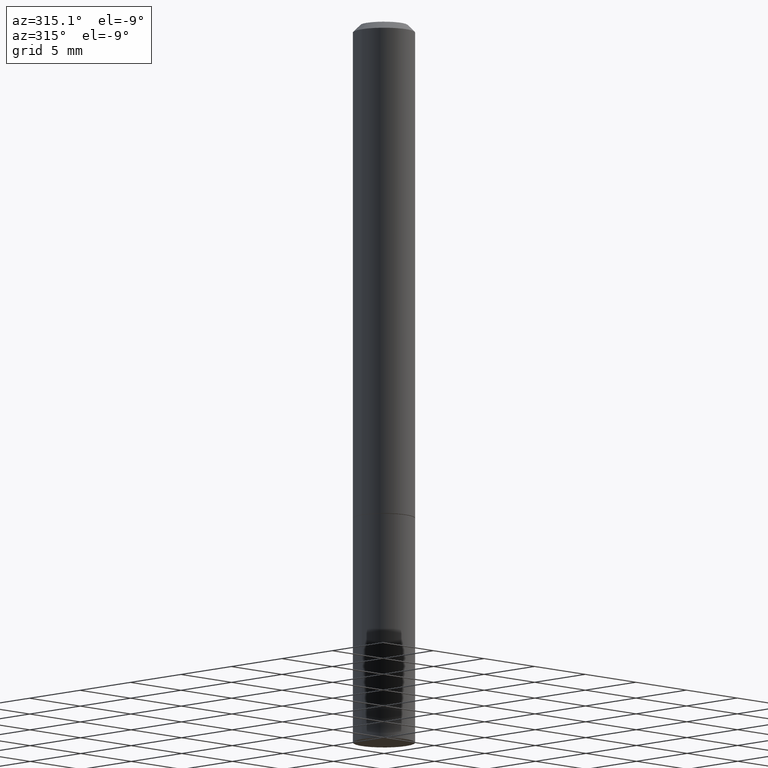
[diagram: clean part render]
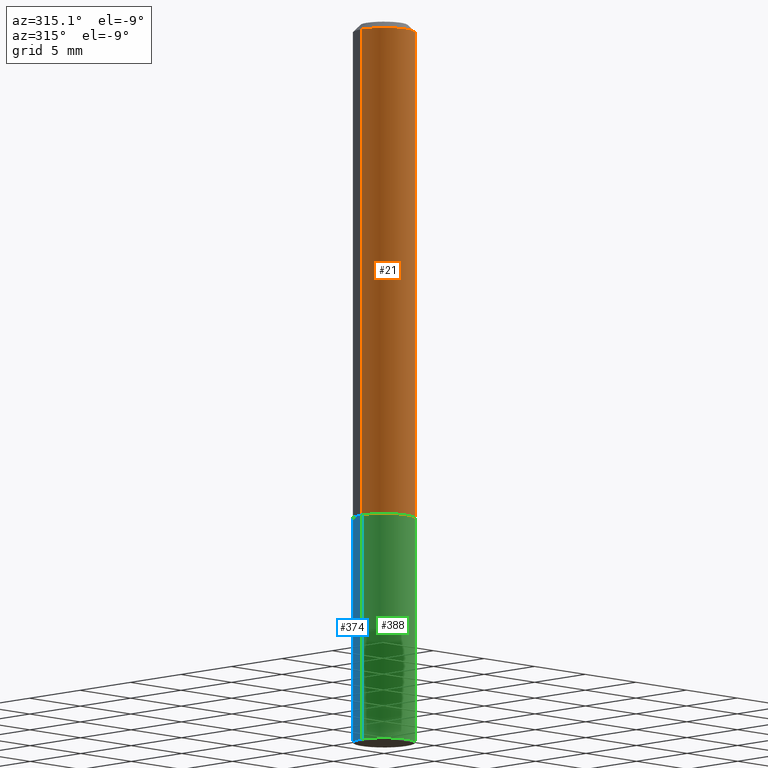
[diagram: same view with three faces highlighted in distinct colors, each labeled with its STEP entity id]
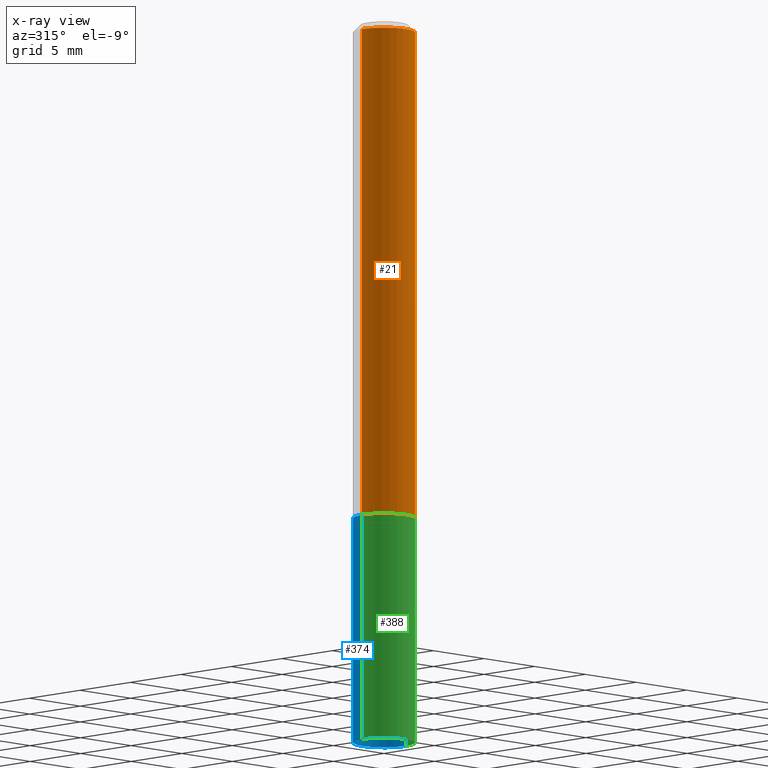
[diagram: x-ray of the same camera — body ghosted, the three highlighted faces saturated]
A machine part, auxiliary view with three faces highlighted in distinct colors.
The next image is the same camera in x-ray (body ghosted, the three faces saturated) — at least one of them is partly hidden behind the body in this view.
Their STEP definitions:

[orange] entity #21 — the highlighted cylindrical surface (edge-blend (fillet) strip) has radius 2.1831 mm, axis along (-0, 0, 1).
#1 = DIRECTION ( 'NONE',  ( -2.445468806185136877E-29, 3.491481338843145188E-15, 1.000000000000000000 ) ) ;
#13 = DIRECTION ( 'NONE',  ( 1.000000000000000000, -6.982962677686267499E-15, 0.000000000000000000 ) ) ;
#21 = ADVANCED_FACE ( 'NONE', ( #295 ), #330, .T. ) ;
#25 = ORIENTED_EDGE ( 'NONE', *, *, #190, .T. ) ;
#37 = DIRECTION ( 'NONE',  ( 1.000000000000000000, -6.982962677686267499E-15, 4.876176775795936353E-29 ) ) ;
#46 = AXIS2_PLACEMENT_3D ( 'NONE', #368, #68, #13 ) ;
#52 = VERTEX_POINT ( 'NONE', #267 ) ;
#60 = ORIENTED_EDGE ( 'NONE', *, *, #125, .T. ) ;
#68 = DIRECTION ( 'NONE',  ( -2.445468806185136597E-29, 3.491481338843145583E-15, 1.000000000000000000 ) ) ;
#70 = VECTOR ( 'NONE', #1, 39.37007874015748143 ) ;
#72 = VERTEX_POINT ( 'NONE', #240 ) ;
#85 = DIRECTION ( 'NONE',  ( 1.000000000000000000, -6.982962677686261977E-15, 0.000000000000000000 ) ) ;
#108 = CARTESIAN_POINT ( 'NONE',  ( 0.000000000000000000, 0.000000000000000000, 0.000000000000000000 ) ) ;
#111 = DIRECTION ( 'NONE',  ( -2.445468806185136597E-29, 3.491481338843145583E-15, 1.000000000000000000 ) ) ;
#113 = CARTESIAN_POINT ( 'NONE',  ( 0.08594999999999981821, -6.594894296853248617E-16, -0.02000000000000002123 ) ) ;
#119 = CIRCLE ( 'NONE', #380, 0.08594999999999998475 ) ;
#125 = EDGE_CURVE ( 'NONE', #337, #72, #119, .T. ) ;
#138 = CARTESIAN_POINT ( 'NONE',  ( -0.08594999999999997087, -1.822851011787864341E-15, -1.373999999999999888 ) ) ;
#140 = EDGE_CURVE ( 'NONE', #337, #52, #386, .T. ) ;
#164 = VERTEX_POINT ( 'NONE', #113 ) ;
#171 = EDGE_CURVE ( 'NONE', #52, #164, #285, .T. ) ;
#183 = ORIENTED_EDGE ( 'NONE', *, *, #140, .F. ) ;
#184 = DIRECTION ( 'NONE',  ( -2.445468806185136877E-29, 3.491481338843145188E-15, 1.000000000000000000 ) ) ;
#186 = LINE ( 'NONE', #269, #349 ) ;
#190 = EDGE_CURVE ( 'NONE', #72, #164, #186, .T. ) ;
#208 = ORIENTED_EDGE ( 'NONE', *, *, #171, .F. ) ;
#231 = CARTESIAN_POINT ( 'NONE',  ( 3.360074139698377778E-29, -4.797295359570481134E-15, -1.373999999999999888 ) ) ;
#240 = CARTESIAN_POINT ( 'NONE',  ( 0.08594999999999998475, -5.397481001717615360E-15, -1.373999999999999888 ) ) ;
#261 = CARTESIAN_POINT ( 'NONE',  ( -0.08594999999999990148, 6.107114813858054097E-16, -4.227824710074086685E-30 ) ) ;
#267 = CARTESIAN_POINT ( 'NONE',  ( -0.08594999999999981821, 5.303560153702704350E-16, -0.02000000000000002123 ) ) ;
#269 = CARTESIAN_POINT ( 'NONE',  ( 0.08594999999999990148, -6.001856421471340290E-16, 4.191073938796602335E-30 ) ) ;
#285 = CIRCLE ( 'NONE', #46, 0.08594999999999981821 ) ;
#295 = FACE_OUTER_BOUND ( 'NONE', #351, .T. ) ;
#320 = AXIS2_PLACEMENT_3D ( 'NONE', #108, #111, #37 ) ;
#330 = CYLINDRICAL_SURFACE ( 'NONE', #320, 0.08594999999999990148 ) ;
#337 = VERTEX_POINT ( 'NONE', #138 ) ;
#349 = VECTOR ( 'NONE', #184, 39.37007874015748143 ) ;
#351 = EDGE_LOOP ( 'NONE', ( #183, #60, #25, #208 ) ) ;
#364 = DIRECTION ( 'NONE',  ( -2.445468806185136597E-29, 3.491481338843145583E-15, 1.000000000000000000 ) ) ;
#368 = CARTESIAN_POINT ( 'NONE',  ( 4.890937612370278413E-31, -6.982962677686297772E-17, -0.02000000000000002123 ) ) ;
#380 = AXIS2_PLACEMENT_3D ( 'NONE', #231, #364, #85 ) ;
#386 = LINE ( 'NONE', #261, #70 ) ;

[blue] entity #374 — the highlighted cylindrical surface (edge-blend (fillet) strip) has radius 2.1831 mm, axis along (-0, 0, 1).
#23 = VERTEX_POINT ( 'NONE', #87 ) ;
#24 = DIRECTION ( 'NONE',  ( -2.445468806185136597E-29, 3.491481338843145583E-15, 1.000000000000000000 ) ) ;
#54 = AXIS2_PLACEMENT_3D ( 'NONE', #294, #334, #58 ) ;
#56 = DIRECTION ( 'NONE',  ( -2.445468806185136877E-29, 3.491481338843145188E-15, 1.000000000000000000 ) ) ;
#58 = DIRECTION ( 'NONE',  ( 1.000000000000000000, -6.982962677686261977E-15, 0.000000000000000000 ) ) ;
#80 = ORIENTED_EDGE ( 'NONE', *, *, #118, .T. ) ;
#87 = CARTESIAN_POINT ( 'NONE',  ( 0.08594999999999990148, -7.572622480594752926E-15, -2.000000000000000000 ) ) ;
#88 = CARTESIAN_POINT ( 'NONE',  ( -0.08594999999999998475, -5.281163277912002145E-15, -1.375000000000000000 ) ) ;
#93 = DIRECTION ( 'NONE',  ( -2.445468806185136597E-29, 3.491481338843145583E-15, 1.000000000000000000 ) ) ;
#99 = ORIENTED_EDGE ( 'NONE', *, *, #352, .F. ) ;
#101 = CARTESIAN_POINT ( 'NONE',  ( 0.08594999999999998475, -6.001856421471345220E-16, 4.191073938796606539E-30 ) ) ;
#118 = EDGE_CURVE ( 'NONE', #220, #378, #287, .T. ) ;
#128 = AXIS2_PLACEMENT_3D ( 'NONE', #264, #24, #215 ) ;
#141 = CYLINDRICAL_SURFACE ( 'NONE', #128, 0.08594999999999998475 ) ;
#149 = CARTESIAN_POINT ( 'NONE',  ( -0.08594999999999990148, -6.382777035539157728E-15, -2.000000000000000000 ) ) ;
#166 = EDGE_CURVE ( 'NONE', #333, #378, #302, .T. ) ;
#167 = AXIS2_PLACEMENT_3D ( 'NONE', #238, #93, #207 ) ;
#173 = FACE_OUTER_BOUND ( 'NONE', #230, .T. ) ;
#176 = ORIENTED_EDGE ( 'NONE', *, *, #359, .T. ) ;
#197 = LINE ( 'NONE', #101, #363 ) ;
#207 = DIRECTION ( 'NONE',  ( 1.000000000000000000, -6.982962677686261977E-15, 0.000000000000000000 ) ) ;
#211 = ORIENTED_EDGE ( 'NONE', *, *, #166, .F. ) ;
#215 = DIRECTION ( 'NONE',  ( 1.000000000000000000, -6.982962677686266711E-15, 4.876176775795936353E-29 ) ) ;
#220 = VERTEX_POINT ( 'NONE', #149 ) ;
#222 = CARTESIAN_POINT ( 'NONE',  ( -0.08594999999999998475, 6.107114813858060014E-16, -4.227824710074091590E-30 ) ) ;
#230 = EDGE_LOOP ( 'NONE', ( #176, #80, #211, #99 ) ) ;
#238 = CARTESIAN_POINT ( 'NONE',  ( 3.362519608504562260E-29, -4.800786840909324930E-15, -1.375000000000000000 ) ) ;
#264 = CARTESIAN_POINT ( 'NONE',  ( 0.000000000000000000, 0.000000000000000000, 0.000000000000000000 ) ) ;
#276 = CIRCLE ( 'NONE', #54, 0.08594999999999998475 ) ;
#282 = VECTOR ( 'NONE', #56, 39.37007874015748143 ) ;
#287 = LINE ( 'NONE', #222, #282 ) ;
#294 = CARTESIAN_POINT ( 'NONE',  ( 4.890937612370273194E-29, -6.982962677686291165E-15, -2.000000000000000000 ) ) ;
#302 = CIRCLE ( 'NONE', #167, 0.08594999999999998475 ) ;
#333 = VERTEX_POINT ( 'NONE', #356 ) ;
#334 = DIRECTION ( 'NONE',  ( -2.445468806185136597E-29, 3.491481338843145583E-15, 1.000000000000000000 ) ) ;
#352 = EDGE_CURVE ( 'NONE', #23, #333, #197, .T. ) ;
#356 = CARTESIAN_POINT ( 'NONE',  ( 0.08594999999999998475, -5.400972483056459156E-15, -1.375000000000000000 ) ) ;
#359 = EDGE_CURVE ( 'NONE', #23, #220, #276, .T. ) ;
#360 = DIRECTION ( 'NONE',  ( -2.445468806185136877E-29, 3.491481338843145188E-15, 1.000000000000000000 ) ) ;
#363 = VECTOR ( 'NONE', #360, 39.37007874015748143 ) ;
#374 = ADVANCED_FACE ( 'NONE', ( #173 ), #141, .T. ) ;
#378 = VERTEX_POINT ( 'NONE', #88 ) ;

[green] entity #388 — the highlighted cylindrical surface (edge-blend (fillet) strip) has radius 2.1831 mm, axis along (-0, 0, 1).
#15 = AXIS2_PLACEMENT_3D ( 'NONE', #339, #16, #63 ) ;
#16 = DIRECTION ( 'NONE',  ( -2.445468806185136597E-29, 3.491481338843145583E-15, 1.000000000000000000 ) ) ;
#23 = VERTEX_POINT ( 'NONE', #87 ) ;
#28 = CIRCLE ( 'NONE', #245, 0.08594999999999998475 ) ;
#42 = ORIENTED_EDGE ( 'NONE', *, *, #352, .T. ) ;
#53 = DIRECTION ( 'NONE',  ( 1.000000000000000000, -6.982962677686261977E-15, 0.000000000000000000 ) ) ;
#56 = DIRECTION ( 'NONE',  ( -2.445468806185136877E-29, 3.491481338843145188E-15, 1.000000000000000000 ) ) ;
#63 = DIRECTION ( 'NONE',  ( 1.000000000000000000, -6.982962677686261977E-15, 0.000000000000000000 ) ) ;
#87 = CARTESIAN_POINT ( 'NONE',  ( 0.08594999999999990148, -7.572622480594752926E-15, -2.000000000000000000 ) ) ;
#88 = CARTESIAN_POINT ( 'NONE',  ( -0.08594999999999998475, -5.281163277912002145E-15, -1.375000000000000000 ) ) ;
#94 = CARTESIAN_POINT ( 'NONE',  ( 0.000000000000000000, 0.000000000000000000, 0.000000000000000000 ) ) ;
#101 = CARTESIAN_POINT ( 'NONE',  ( 0.08594999999999998475, -6.001856421471345220E-16, 4.191073938796606539E-30 ) ) ;
#116 = DIRECTION ( 'NONE',  ( 1.000000000000000000, -6.982962677686266711E-15, 4.876176775795936353E-29 ) ) ;
#118 = EDGE_CURVE ( 'NONE', #220, #378, #287, .T. ) ;
#131 = ORIENTED_EDGE ( 'NONE', *, *, #214, .T. ) ;
#137 = ORIENTED_EDGE ( 'NONE', *, *, #353, .F. ) ;
#149 = CARTESIAN_POINT ( 'NONE',  ( -0.08594999999999990148, -6.382777035539157728E-15, -2.000000000000000000 ) ) ;
#180 = DIRECTION ( 'NONE',  ( -2.445468806185136597E-29, 3.491481338843145583E-15, 1.000000000000000000 ) ) ;
#197 = LINE ( 'NONE', #101, #363 ) ;
#214 = EDGE_CURVE ( 'NONE', #220, #23, #354, .T. ) ;
#220 = VERTEX_POINT ( 'NONE', #149 ) ;
#222 = CARTESIAN_POINT ( 'NONE',  ( -0.08594999999999998475, 6.107114813858060014E-16, -4.227824710074091590E-30 ) ) ;
#245 = AXIS2_PLACEMENT_3D ( 'NONE', #262, #329, #53 ) ;
#262 = CARTESIAN_POINT ( 'NONE',  ( 3.362519608504562260E-29, -4.800786840909324930E-15, -1.375000000000000000 ) ) ;
#266 = CYLINDRICAL_SURFACE ( 'NONE', #355, 0.08594999999999998475 ) ;
#275 = ORIENTED_EDGE ( 'NONE', *, *, #118, .F. ) ;
#282 = VECTOR ( 'NONE', #56, 39.37007874015748143 ) ;
#287 = LINE ( 'NONE', #222, #282 ) ;
#329 = DIRECTION ( 'NONE',  ( -2.445468806185136597E-29, 3.491481338843145583E-15, 1.000000000000000000 ) ) ;
#333 = VERTEX_POINT ( 'NONE', #356 ) ;
#339 = CARTESIAN_POINT ( 'NONE',  ( 4.890937612370273194E-29, -6.982962677686291165E-15, -2.000000000000000000 ) ) ;
#347 = FACE_OUTER_BOUND ( 'NONE', #381, .T. ) ;
#352 = EDGE_CURVE ( 'NONE', #23, #333, #197, .T. ) ;
#353 = EDGE_CURVE ( 'NONE', #378, #333, #28, .T. ) ;
#354 = CIRCLE ( 'NONE', #15, 0.08594999999999998475 ) ;
#355 = AXIS2_PLACEMENT_3D ( 'NONE', #94, #180, #116 ) ;
#356 = CARTESIAN_POINT ( 'NONE',  ( 0.08594999999999998475, -5.400972483056459156E-15, -1.375000000000000000 ) ) ;
#360 = DIRECTION ( 'NONE',  ( -2.445468806185136877E-29, 3.491481338843145188E-15, 1.000000000000000000 ) ) ;
#363 = VECTOR ( 'NONE', #360, 39.37007874015748143 ) ;
#378 = VERTEX_POINT ( 'NONE', #88 ) ;
#381 = EDGE_LOOP ( 'NONE', ( #275, #131, #42, #137 ) ) ;
#388 = ADVANCED_FACE ( 'NONE', ( #347 ), #266, .T. ) ;